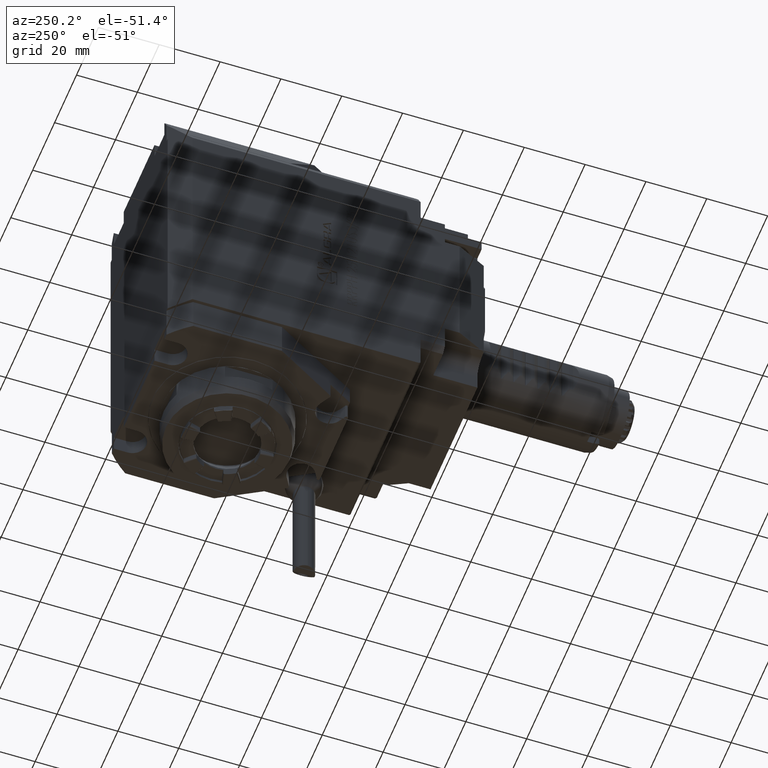
[diagram: clean part render]
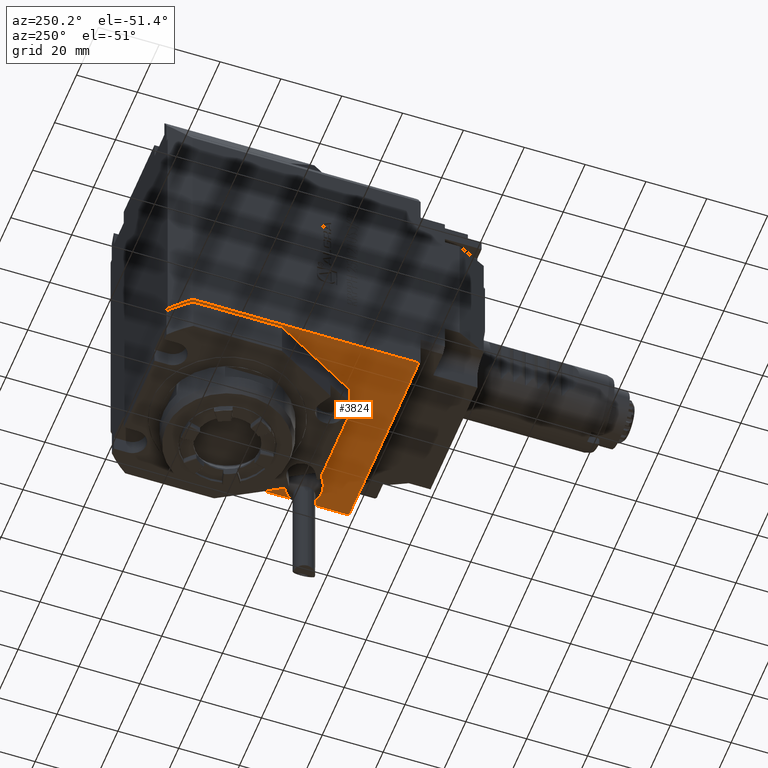
[diagram: same view with one face highlighted and labeled with its STEP entity id]
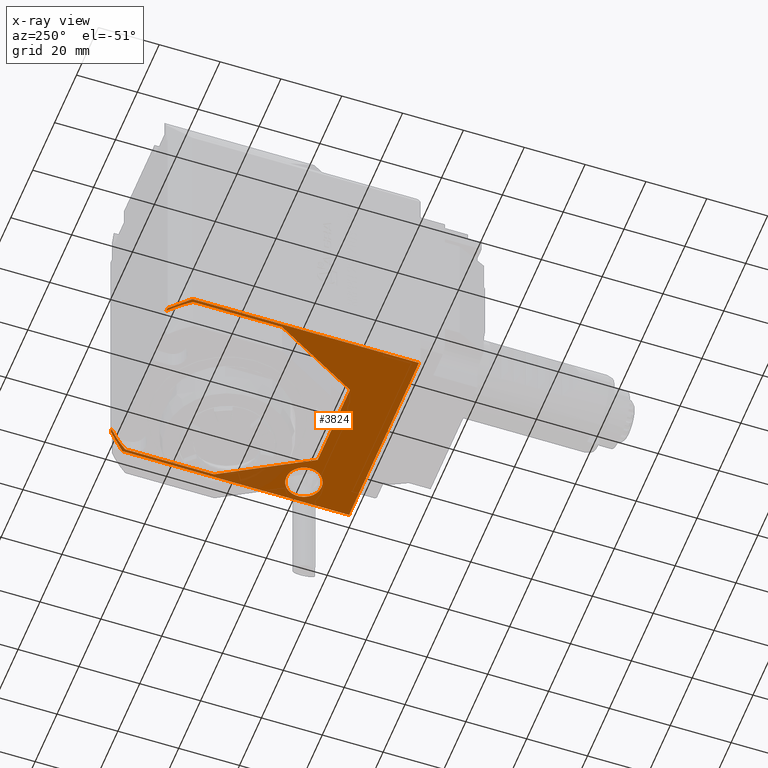
[diagram: x-ray of the same camera — body ghosted, the highlighted face saturated]
A machine part, auxiliary view. The second image highlights one B-rep face of the part: STEP entity #3824.
The next image is the same camera in x-ray: the body ghosted, the highlighted face saturated — about 8% of this face is hidden behind the body in this view.
In plain terms, the highlighted planar face has unit normal (-0, 0, 1).
Its self-contained STEP definition (entity closure, byte-faithful):
#615 = ORIENTED_EDGE ( 'NONE', *, *, #27720, .F. ) ;
#1006 = ORIENTED_EDGE ( 'NONE', *, *, #23423, .T. ) ;
#1345 = VERTEX_POINT ( 'NONE', #33942 ) ;
#2047 = CARTESIAN_POINT ( 'NONE',  ( 26.00000000000010303, 29.00000000000001421, -42.00000000000000000 ) ) ;
#2223 = CARTESIAN_POINT ( 'NONE',  ( -5.204170427930419706E-15, -0.0001278952014615100663, -41.99999999999999289 ) ) ;
#2257 = CARTESIAN_POINT ( 'NONE',  ( -14.72243186433543372, -35.00012789520147294, -41.99999999999999289 ) ) ;
#2316 = VERTEX_POINT ( 'NONE', #12159 ) ;
#2783 = PLANE ( 'NONE',  #11949 ) ;
#3089 = LINE ( 'NONE', #25687, #9745 ) ;
#3292 = VERTEX_POINT ( 'NONE', #23015 ) ;
#3391 = EDGE_CURVE ( 'NONE', #15871, #11654, #36494, .T. ) ;
#3432 = ORIENTED_EDGE ( 'NONE', *, *, #36409, .T. ) ;
#3824 = ADVANCED_FACE ( 'Defeature completata1_125', ( #5922, #19627, #11302 ), #2783, .F. ) ;
#3874 = LINE ( 'NONE', #23110, #5918 ) ;
#3988 = CARTESIAN_POINT ( 'NONE',  ( 14.72243186433541418, -35.00012789520148004, -41.99999999999999289 ) ) ;
#4204 = ORIENTED_EDGE ( 'NONE', *, *, #18429, .T. ) ;
#4767 = CARTESIAN_POINT ( 'NONE',  ( 14.72243186433541418, -35.00012789520148004, -41.99999999999999289 ) ) ;
#5217 = CARTESIAN_POINT ( 'NONE',  ( -32.00000000000003553, 29.00000000000004263, -42.00000000000000000 ) ) ;
#5407 = DIRECTION ( 'NONE',  ( 6.938893903907230843E-17, -1.000000000000000000, 0.000000000000000000 ) ) ;
#5508 = EDGE_CURVE ( 'NONE', #11240, #19347, #8886, .T. ) ;
#5619 = CARTESIAN_POINT ( 'NONE',  ( 32.00000000000003553, 29.00000000000002132, -42.00000000000000000 ) ) ;
#5918 = VECTOR ( 'NONE', #17347, 1000.000000000000000 ) ;
#5922 = FACE_BOUND ( 'NONE', #14108, .T. ) ;
#6563 = LINE ( 'NONE', #3988, #32125 ) ;
#6927 = DIRECTION ( 'NONE',  ( -1.902153031493568427E-32, 8.566535683836096575E-17, 1.000000000000000000 ) ) ;
#7099 = CARTESIAN_POINT ( 'NONE',  ( 24.51000000000000512, -34.00000000000001421, -41.99999999999999289 ) ) ;
#8274 = CARTESIAN_POINT ( 'NONE',  ( -32.00000000000002132, -51.50000000000004974, -41.99999999999999289 ) ) ;
#8370 = VECTOR ( 'NONE', #21569, 1000.000000000000000 ) ;
#8886 = LINE ( 'NONE', #15186, #34587 ) ;
#8925 = CARTESIAN_POINT ( 'NONE',  ( 30.99999999999999289, 22.40662331955522291, -41.99999999999999289 ) ) ;
#9560 = CARTESIAN_POINT ( 'NONE',  ( -24.94118080604846455, 28.99987210479854483, -42.00000000000000000 ) ) ;
#9745 = VECTOR ( 'NONE', #26611, 1000.000000000000000 ) ;
#10017 = LINE ( 'NONE', #2047, #23915 ) ;
#10391 = VECTOR ( 'NONE', #27350, 1000.000000000000114 ) ;
#10416 = DIRECTION ( 'NONE',  ( 2.220446049250312588E-16, -1.000000000000000000, 8.566535683836074389E-17 ) ) ;
#10557 = DIRECTION ( 'NONE',  ( 6.938893903907230843E-17, -1.000000000000000000, 0.000000000000000000 ) ) ;
#11240 = VERTEX_POINT ( 'NONE', #8925 ) ;
#11302 = FACE_BOUND ( 'NONE', #26700, .T. ) ;
#11412 = CARTESIAN_POINT ( 'NONE',  ( -32.00000000000002132, -51.50000000000004974, -41.99999999999999289 ) ) ;
#11654 = VERTEX_POINT ( 'NONE', #13312 ) ;
#11949 = AXIS2_PLACEMENT_3D ( 'NONE', #22601, #28341, #25562 ) ;
#11981 = EDGE_CURVE ( 'NONE', #12491, #13691, #30052, .T. ) ;
#12159 = CARTESIAN_POINT ( 'NONE',  ( 14.72243186433541418, -35.00012789520148004, -41.99999999999999289 ) ) ;
#12304 = CIRCLE ( 'NONE', #24127, 5.809475019311123312 ) ;
#12344 = EDGE_LOOP ( 'NONE', ( #25977, #3432, #27557, #29361, #29663, #24524 ) ) ;
#12491 = VERTEX_POINT ( 'NONE', #28129 ) ;
#12642 = EDGE_CURVE ( 'NONE', #19347, #2316, #16423, .T. ) ;
#12959 = VERTEX_POINT ( 'NONE', #2257 ) ;
#13076 = ORIENTED_EDGE ( 'NONE', *, *, #19626, .F. ) ;
#13312 = CARTESIAN_POINT ( 'NONE',  ( 32.00000000000004974, -51.50000000000009237, -41.99999999999999289 ) ) ;
#13691 = VERTEX_POINT ( 'NONE', #11412 ) ;
#14108 = EDGE_LOOP ( 'NONE', ( #1006 ) ) ;
#15186 = CARTESIAN_POINT ( 'NONE',  ( 30.99999999999999289, 28.99987210479854838, -41.99999999999999289 ) ) ;
#15871 = VERTEX_POINT ( 'NONE', #19554 ) ;
#15961 = VERTEX_POINT ( 'NONE', #27789 ) ;
#16423 = LINE ( 'NONE', #4767, #35492 ) ;
#16473 = DIRECTION ( 'NONE',  ( -0.7071067811865431318, 0.7071067811865517916, 0.000000000000000000 ) ) ;
#16900 = DIRECTION ( 'NONE',  ( 2.220446049250312588E-16, -1.000000000000000000, 8.566535683836074389E-17 ) ) ;
#17327 = EDGE_CURVE ( 'NONE', #26987, #34623, #19048, .T. ) ;
#17347 = DIRECTION ( 'NONE',  ( -0.7071067811865436870, -0.7071067811865513475, 0.000000000000000000 ) ) ;
#17945 = ORIENTED_EDGE ( 'NONE', *, *, #17327, .T. ) ;
#18033 = DIRECTION ( 'NONE',  ( 0.000000000000000000, -1.000000000000000000, 0.000000000000000000 ) ) ;
#18047 = DIRECTION ( 'NONE',  ( -1.000000000000000000, 1.662682529196986111E-16, -1.783969542335458563E-16 ) ) ;
#18429 = EDGE_CURVE ( 'NONE', #11240, #1345, #30939, .T. ) ;
#19048 = CIRCLE ( 'NONE', #22021, 38.25000000000000000 ) ;
#19232 = DIRECTION ( 'NONE',  ( 1.000000000000000000, -3.330669073875468635E-16, -0.000000000000000000 ) ) ;
#19347 = VERTEX_POINT ( 'NONE', #28905 ) ;
#19421 = EDGE_CURVE ( 'NONE', #32346, #3292, #30007, .T. ) ;
#19554 = CARTESIAN_POINT ( 'NONE',  ( 32.00000000000003553, 23.00000000000000000, -42.00000000000000000 ) ) ;
#19586 = DIRECTION ( 'NONE',  ( -1.000000000000000000, 3.330669073875468635E-16, 0.000000000000000000 ) ) ;
#19626 = EDGE_CURVE ( 'NONE', #2316, #12959, #6563, .T. ) ;
#19627 = FACE_OUTER_BOUND ( 'NONE', #12344, .T. ) ;
#21259 = VERTEX_POINT ( 'NONE', #34198 ) ;
#21569 = DIRECTION ( 'NONE',  ( 2.212946705625209737E-16, 1.000000000000000000, -6.939361969930751578E-17 ) ) ;
#21752 = EDGE_CURVE ( 'NONE', #12959, #21259, #29947, .T. ) ;
#21855 = ORIENTED_EDGE ( 'NONE', *, *, #35000, .F. ) ;
#22021 = AXIS2_PLACEMENT_3D ( 'NONE', #27645, #36100, #5407 ) ;
#22601 = CARTESIAN_POINT ( 'NONE',  ( -32.00000000000003553, 29.00000000000004263, -42.00000000000000000 ) ) ;
#22934 = CARTESIAN_POINT ( 'NONE',  ( -31.00000000000000711, 22.40662331955523712, -42.00000000000000000 ) ) ;
#23015 = CARTESIAN_POINT ( 'NONE',  ( 26.00000000000010303, 29.00000000000001421, -42.00000000000000000 ) ) ;
#23110 = CARTESIAN_POINT ( 'NONE',  ( -26.00000000000011013, 29.00000000000004263, -42.00000000000000000 ) ) ;
#23423 = EDGE_CURVE ( 'NONE', #15961, #15961, #12304, .T. ) ;
#23718 = DIRECTION ( 'NONE',  ( 1.662834755729364400E-16, -1.000000000000000000, 6.939361969930757741E-17 ) ) ;
#23915 = VECTOR ( 'NONE', #16473, 1000.000000000000114 ) ;
#24127 = AXIS2_PLACEMENT_3D ( 'NONE', #7099, #6927, #18033 ) ;
#24351 = CARTESIAN_POINT ( 'NONE',  ( -30.99999999999999289, 28.99987210479854127, -42.00000000000000000 ) ) ;
#24524 = ORIENTED_EDGE ( 'NONE', *, *, #32373, .F. ) ;
#24584 = DIRECTION ( 'NONE',  ( -0.5000000000000008882, -0.8660254037844380415, -2.910183959661648994E-17 ) ) ;
#25494 = VECTOR ( 'NONE', #16900, 1000.000000000000000 ) ;
#25562 = DIRECTION ( 'NONE',  ( -2.220446049250312588E-16, 1.000000000000000000, -8.566535683836074389E-17 ) ) ;
#25687 = CARTESIAN_POINT ( 'NONE',  ( 30.99999999999999289, 28.99987210479854838, -41.99999999999999289 ) ) ;
#25977 = ORIENTED_EDGE ( 'NONE', *, *, #3391, .T. ) ;
#26367 = ORIENTED_EDGE ( 'NONE', *, *, #12642, .F. ) ;
#26520 = CARTESIAN_POINT ( 'NONE',  ( -26.00000000000011013, 29.00000000000004263, -42.00000000000000000 ) ) ;
#26611 = DIRECTION ( 'NONE',  ( 1.000000000000000000, -4.252870457233464940E-17, 1.783969542335457824E-16 ) ) ;
#26700 = EDGE_LOOP ( 'NONE', ( #4204, #615, #17945, #21855, #30229, #13076, #26367, #33983 ) ) ;
#26987 = VERTEX_POINT ( 'NONE', #9560 ) ;
#27350 = DIRECTION ( 'NONE',  ( -0.5000000000000011102, 0.8660254037844380415, -1.492951146369296006E-16 ) ) ;
#27537 = CARTESIAN_POINT ( 'NONE',  ( -14.72243186433543372, -35.00012789520147294, -41.99999999999999289 ) ) ;
#27557 = ORIENTED_EDGE ( 'NONE', *, *, #11981, .F. ) ;
#27645 = CARTESIAN_POINT ( 'NONE',  ( -5.204170427930419706E-15, -0.0001278952014615100663, -41.99999999999999289 ) ) ;
#27720 = EDGE_CURVE ( 'NONE', #26987, #1345, #3089, .T. ) ;
#27789 = CARTESIAN_POINT ( 'NONE',  ( 24.51000000000000512, -39.80947501931113663, -41.99999999999999289 ) ) ;
#28020 = AXIS2_PLACEMENT_3D ( 'NONE', #2223, #30717, #10557 ) ;
#28129 = CARTESIAN_POINT ( 'NONE',  ( -32.00000000000003553, 23.00000000000002842, -42.00000000000000000 ) ) ;
#28341 = DIRECTION ( 'NONE',  ( -1.902153031493563501E-32, 8.566535683836074389E-17, 1.000000000000000000 ) ) ;
#28486 = VECTOR ( 'NONE', #19586, 1000.000000000000000 ) ;
#28905 = CARTESIAN_POINT ( 'NONE',  ( 31.00000000000000000, -6.806552860566259966, -41.99999999999998579 ) ) ;
#29361 = ORIENTED_EDGE ( 'NONE', *, *, #33570, .F. ) ;
#29663 = ORIENTED_EDGE ( 'NONE', *, *, #19421, .T. ) ;
#29772 = VECTOR ( 'NONE', #19232, 1000.000000000000000 ) ;
#29917 = LINE ( 'NONE', #24351, #8370 ) ;
#29947 = LINE ( 'NONE', #27537, #10391 ) ;
#30007 = LINE ( 'NONE', #35690, #29772 ) ;
#30052 = LINE ( 'NONE', #5217, #35028 ) ;
#30229 = ORIENTED_EDGE ( 'NONE', *, *, #21752, .F. ) ;
#30717 = DIRECTION ( 'NONE',  ( -1.783969542335459056E-16, 6.939361969930742949E-17, 1.000000000000000000 ) ) ;
#30939 = CIRCLE ( 'NONE', #28020, 38.25000000000000000 ) ;
#32125 = VECTOR ( 'NONE', #18047, 1000.000000000000000 ) ;
#32346 = VERTEX_POINT ( 'NONE', #26520 ) ;
#32373 = EDGE_CURVE ( 'NONE', #15871, #3292, #10017, .T. ) ;
#33570 = EDGE_CURVE ( 'NONE', #32346, #12491, #3874, .T. ) ;
#33632 = LINE ( 'NONE', #8274, #28486 ) ;
#33942 = CARTESIAN_POINT ( 'NONE',  ( 24.94118080604845034, 28.99987210479854483, -41.99999999999999289 ) ) ;
#33983 = ORIENTED_EDGE ( 'NONE', *, *, #5508, .F. ) ;
#34198 = CARTESIAN_POINT ( 'NONE',  ( -31.00000000000000000, -6.806552860566288388, -42.00000000000000000 ) ) ;
#34587 = VECTOR ( 'NONE', #23718, 1000.000000000000000 ) ;
#34623 = VERTEX_POINT ( 'NONE', #22934 ) ;
#35000 = EDGE_CURVE ( 'NONE', #21259, #34623, #29917, .T. ) ;
#35028 = VECTOR ( 'NONE', #10416, 1000.000000000000000 ) ;
#35492 = VECTOR ( 'NONE', #24584, 1000.000000000000227 ) ;
#35690 = CARTESIAN_POINT ( 'NONE',  ( -32.00000000000003553, 29.00000000000004263, -42.00000000000000000 ) ) ;
#36100 = DIRECTION ( 'NONE',  ( -1.783969542335459056E-16, 6.939361969930742949E-17, 1.000000000000000000 ) ) ;
#36409 = EDGE_CURVE ( 'NONE', #11654, #13691, #33632, .T. ) ;
#36494 = LINE ( 'NONE', #5619, #25494 ) ;